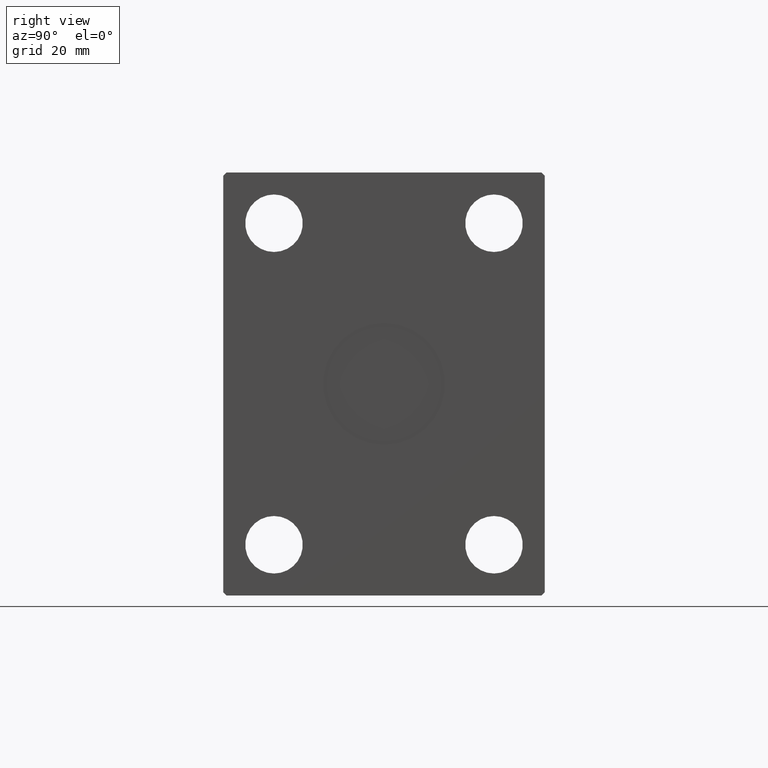
[diagram: clean part render]
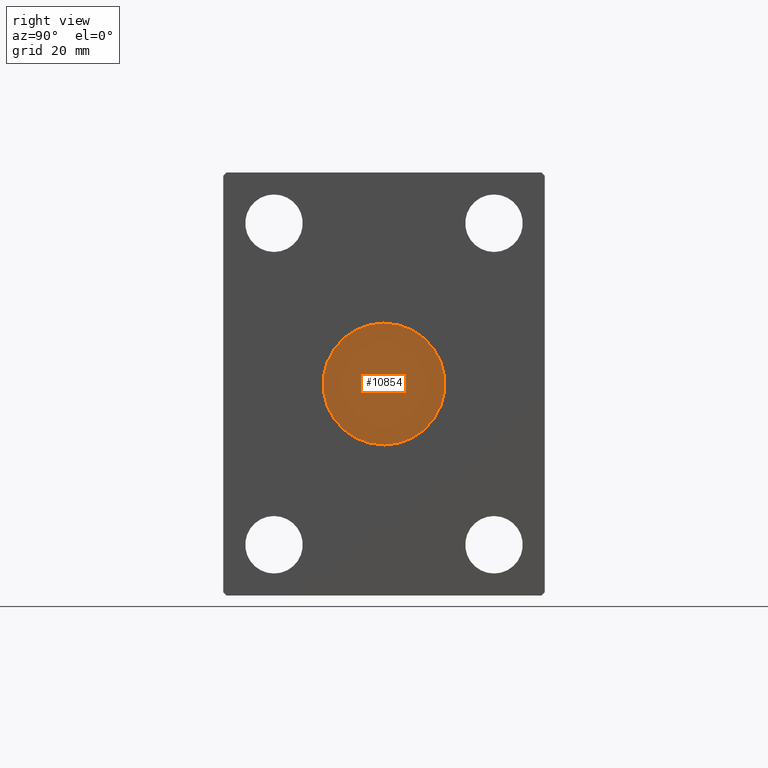
[diagram: same view with one face highlighted and labeled with its STEP entity id]
A machine part, right view. The second image highlights one B-rep face of the part: STEP entity #10854.
In plain terms, the highlighted planar face has unit normal (1, 0, 0).
Its self-contained STEP definition (entity closure, byte-faithful):
#953 = AXIS2_PLACEMENT_3D ( 'NONE', #29874, #26500, #43169 ) ;
#1393 = DIRECTION ( 'NONE',  ( 0.000000000000000000, 0.000000000000000000, -1.000000000000000000 ) ) ;
#6095 = VERTEX_POINT ( 'NONE', #19726 ) ;
#10854 = ADVANCED_FACE ( 'NONE', ( #19377 ), #26112, .T. ) ;
#12164 = EDGE_CURVE ( 'NONE', #6095, #31841, #30382, .T. ) ;
#13130 = AXIS2_PLACEMENT_3D ( 'NONE', #43871, #23619, #43647 ) ;
#13242 = EDGE_LOOP ( 'NONE', ( #40028, #41199 ) ) ;
#15787 = DIRECTION ( 'NONE',  ( 1.000000000000000000, 0.000000000000000000, 0.000000000000000000 ) ) ;
#19377 = FACE_OUTER_BOUND ( 'NONE', #13242, .T. ) ;
#19726 = CARTESIAN_POINT ( 'NONE',  ( 120.7999999999999972, 2.204364238465235428E-15, 18.00000000000000000 ) ) ;
#23619 = DIRECTION ( 'NONE',  ( 1.000000000000000000, 0.000000000000000000, 0.000000000000000000 ) ) ;
#26112 = PLANE ( 'NONE',  #13130 ) ;
#26500 = DIRECTION ( 'NONE',  ( 1.000000000000000000, 0.000000000000000000, 0.000000000000000000 ) ) ;
#29874 = CARTESIAN_POINT ( 'NONE',  ( 120.7999999999999972, 0.000000000000000000, 0.000000000000000000 ) ) ;
#30382 = CIRCLE ( 'NONE', #953, 18.00000000000000000 ) ;
#31841 = VERTEX_POINT ( 'NONE', #38284 ) ;
#34313 = AXIS2_PLACEMENT_3D ( 'NONE', #38947, #15787, #1393 ) ;
#35049 = CIRCLE ( 'NONE', #34313, 18.00000000000000000 ) ;
#38284 = CARTESIAN_POINT ( 'NONE',  ( 120.7999999999999972, 0.000000000000000000, -18.00000000000000000 ) ) ;
#38947 = CARTESIAN_POINT ( 'NONE',  ( 120.7999999999999972, 0.000000000000000000, 0.000000000000000000 ) ) ;
#40028 = ORIENTED_EDGE ( 'NONE', *, *, #41606, .T. ) ;
#41199 = ORIENTED_EDGE ( 'NONE', *, *, #12164, .T. ) ;
#41606 = EDGE_CURVE ( 'NONE', #31841, #6095, #35049, .T. ) ;
#43169 = DIRECTION ( 'NONE',  ( 0.000000000000000000, 0.000000000000000000, -1.000000000000000000 ) ) ;
#43647 = DIRECTION ( 'NONE',  ( 0.000000000000000000, 0.000000000000000000, -1.000000000000000000 ) ) ;
#43871 = CARTESIAN_POINT ( 'NONE',  ( 120.7999999999999972, 0.000000000000000000, 0.000000000000000000 ) ) ;